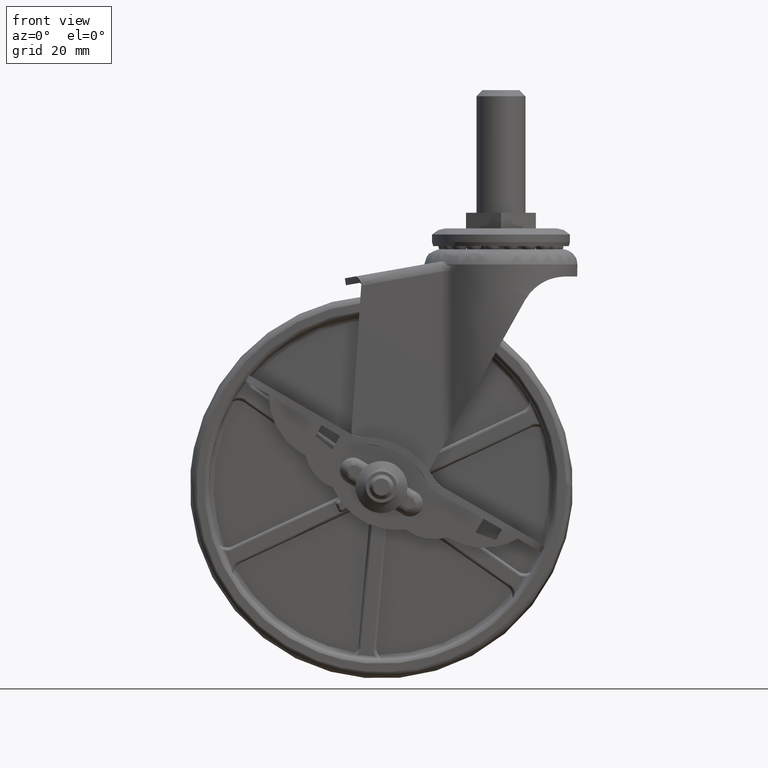
[diagram: clean part render]
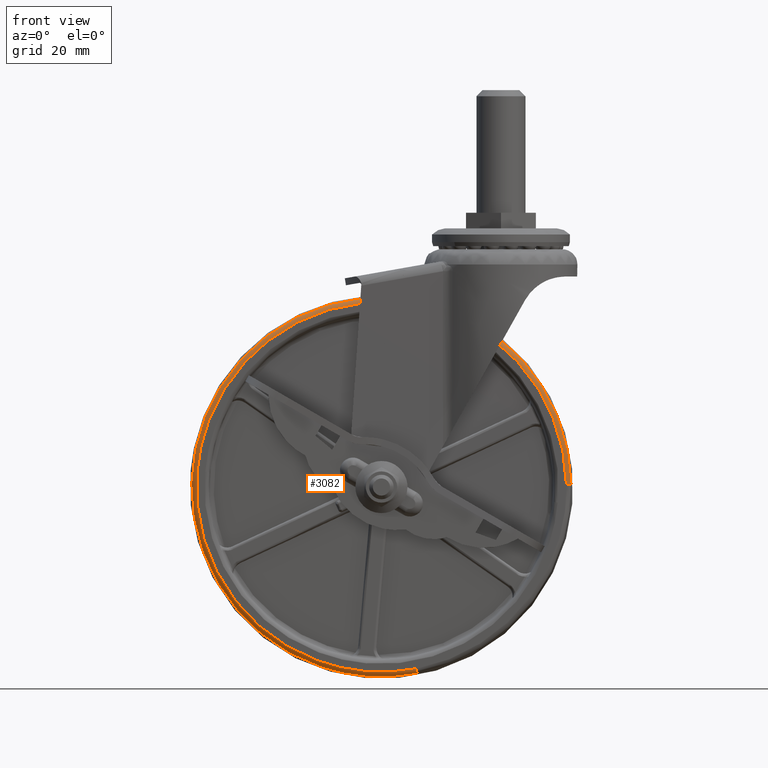
[diagram: same view with one face highlighted and labeled with its STEP entity id]
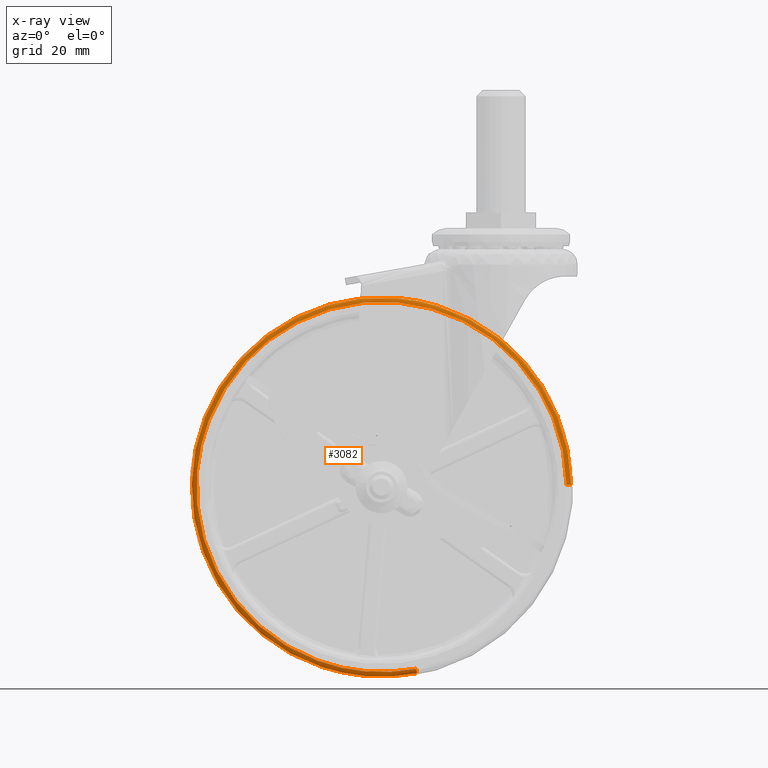
[diagram: x-ray of the same camera — body ghosted, the highlighted face saturated]
A machine part, front view. The second image highlights one B-rep face of the part: STEP entity #3082.
The next image is the same camera in x-ray: the body ghosted, the highlighted face saturated — about 0% of this face is hidden behind the body in this view.
In plain terms, the highlighted face is a freeform B-spline surface patch.
Its self-contained STEP definition (entity closure, byte-faithful):
#2843=CARTESIAN_POINT('',(16.453252292690600,-12.499999999999959,-58.099059679529667));
#2844=VERTEX_POINT('',#2843);
#2845=CARTESIAN_POINT('',(60.078980429893022,-12.499999999999959,6.060227488452332));
#2846=VERTEX_POINT('',#2845);
#2864=CARTESIAN_POINT('',(16.859412540729789,-11.167512254806500,-59.533276336664599));
#2865=VERTEX_POINT('',#2864);
#2866=CARTESIAN_POINT('',(16.859412540729789,-11.167512254806500,-59.533276336664599));
#2867=CARTESIAN_POINT('',(16.853237502718439,-11.371463891503289,-59.511471291961151));
#2868=CARTESIAN_POINT('',(16.819508682495059,-11.747251617374680,-59.392369444820069));
#2869=CARTESIAN_POINT('',(16.717276672305079,-12.188880453102581,-59.031371901093230));
#2870=CARTESIAN_POINT('',(16.589894838023170,-12.444971255589961,-58.581566314668969));
#2871=CARTESIAN_POINT('',(16.496729751554859,-12.500071203979379,-58.252585525599272));
#2872=CARTESIAN_POINT('',(16.453252292690600,-12.499999999999959,-58.099059679529667));
#2873=B_SPLINE_CURVE_WITH_KNOTS('',3,(#2866,#2867,#2868,#2869,#2870,#2871,#2872),.UNSPECIFIED.,.F.,.U.,(4,1,1,1,4),(0.000000233319746,0.615522485880373,1.162648214424192,1.709783569192799,2.188522399944633),.UNSPECIFIED.);
#2874=EDGE_CURVE('',#2865,#2844,#2873,.T.);
#2876=CARTESIAN_POINT('',(61.562073801667132,-11.167497079689721,6.209828615817592));
#2877=VERTEX_POINT('',#2876);
#2894=CARTESIAN_POINT('',(61.562073801667132,-11.167497079689721,6.209828615817592));
#2895=CARTESIAN_POINT('',(61.534781723095492,-11.416853879439451,6.207075636252794));
#2896=CARTESIAN_POINT('',(61.376141907110203,-11.834211039669761,6.191073477659235));
#2897=CARTESIAN_POINT('',(60.997214867841151,-12.207147354371960,6.152850724226451));
#2898=CARTESIAN_POINT('',(60.577767845307122,-12.438205850484691,6.110540679140562));
#2899=CARTESIAN_POINT('',(60.283157122639643,-12.500268644065120,6.080822997797434));
#2900=CARTESIAN_POINT('',(60.078980429893022,-12.499999999999959,6.060227488452332));
#2901=B_SPLINE_CURVE_WITH_KNOTS('',3,(#2894,#2895,#2896,#2897,#2898,#2899,#2900),.UNSPECIFIED.,.F.,.U.,(4,1,1,1,4),(0.000000233330800,0.752312871302167,1.299438212000502,1.573010826571654,2.188537257960483),.UNSPECIFIED.);
#2902=EDGE_CURVE('',#2877,#2846,#2901,.T.);
#2907=CARTESIAN_POINT('',(61.569816046889464,-11.069252319270715,6.210609583864381));
#2908=CARTESIAN_POINT('',(55.359206463025075,-11.069252319270714,67.780425630753854));
#2909=CARTESIAN_POINT('',(-6.210609583864379,-11.069252319270715,61.569816046889464));
#2910=CARTESIAN_POINT('',(-67.780425630753854,-11.069252319270714,55.359206463025075));
#2911=CARTESIAN_POINT('',(-61.569816046889464,-11.069252319270715,-6.210609583864375));
#2912=CARTESIAN_POINT('',(-55.359206463025075,-11.069252319270714,-67.780425630753854));
#2913=CARTESIAN_POINT('',(6.210609583864371,-11.069252319270715,-61.569816046889464));
#2914=CARTESIAN_POINT('',(11.625292589156992,-11.069252319270710,-61.023631498593119));
#2915=CARTESIAN_POINT('',(16.861533098262161,-11.069252319270712,-59.540764363813842));
#2916=CARTESIAN_POINT('',(61.499552790669277,-12.597241096848869,6.203522058182280));
#2917=CARTESIAN_POINT('',(55.296030732486990,-12.597241096848872,67.703074848851529));
#2918=CARTESIAN_POINT('',(-6.203522058182275,-12.597241096848869,61.499552790669277));
#2919=CARTESIAN_POINT('',(-67.703074848851529,-12.597241096848872,55.296030732486990));
#2920=CARTESIAN_POINT('',(-61.499552790669277,-12.597241096848869,-6.203522058182272));
#2921=CARTESIAN_POINT('',(-55.296030732487012,-12.597241096848872,-67.703074848851529));
#2922=CARTESIAN_POINT('',(6.203522058182270,-12.597241096848869,-61.499552790669277));
#2923=CARTESIAN_POINT('',(11.612025846388029,-12.597241096848869,-60.953991546246890));
#2924=CARTESIAN_POINT('',(16.842290776351589,-12.597241096848871,-59.472816654194979));
#2925=CARTESIAN_POINT('',(59.980943166711072,-12.496760101700342,6.050338370293384));
#2926=CARTESIAN_POINT('',(53.930604796417676,-12.496760101700339,66.031281537004418));
#2927=CARTESIAN_POINT('',(-6.050338370293379,-12.496760101700342,59.980943166711072));
#2928=CARTESIAN_POINT('',(-66.031281537004418,-12.496760101700339,53.930604796417676));
#2929=CARTESIAN_POINT('',(-59.980943166711072,-12.496760101700342,-6.050338370293377));
#2930=CARTESIAN_POINT('',(-53.930604796417676,-12.496760101700339,-66.031281537004418));
#2931=CARTESIAN_POINT('',(6.050338370293372,-12.496760101700342,-59.980943166711072));
#2932=CARTESIAN_POINT('',(11.325289871835514,-12.496760101700339,-59.448853476448740));
#2933=CARTESIAN_POINT('',(16.426403770643958,-12.496760101700332,-58.004253264110211));
#2941=(BOUNDED_SURFACE()B_SPLINE_SURFACE(2,2,((#2907,#2916,#2925),(#2908,#2917,#2926),(#2909,#2918,#2927),(#2910,#2919,#2928),(#2911,#2920,#2929),(#2912,#2921,#2930),(#2913,#2922,#2931),(#2914,#2923,#2932),(#2915,#2924,#2933)),.UNSPECIFIED.,.F.,.F.,.U.)B_SPLINE_SURFACE_WITH_KNOTS((3,2,2,2,3),(3,3),(0.0,102.529882995908590,205.059765991817190,307.589648987725810,319.893234947234820),(0.0,2.519712757315813),.UNSPECIFIED.)GEOMETRIC_REPRESENTATION_ITEM()RATIONAL_B_SPLINE_SURFACE(((0.912563850757037,0.638783160504947,0.912113588463525),(0.645280087136010,0.451687904500823,0.644961703614955),(0.912563850757037,0.638783160504947,0.912113588463525),(0.645280087136010,0.451687904500823,0.644961703614955),(0.912563850757037,0.638783160504947,0.912113588463525),(0.645280087136010,0.451687904500823,0.644961703614955),(0.912563850757037,0.638783160504947,0.912113588463525),(0.880489799122514,0.616331729784453,0.880055362281697),(0.856113519880276,0.599268642436876,0.855691110383507)))REPRESENTATION_ITEM('')SURFACE());
#2942=CARTESIAN_POINT('',(0.0,-12.500000000000000,-60.383857476401097));
#2943=VERTEX_POINT('',#2942);
#2944=CARTESIAN_POINT('',(0.0,-12.500000000000000,-60.383857476401097));
#2945=CARTESIAN_POINT('',(2.343370012421323,-12.500000000000011,-60.383899253343969));
#2946=CARTESIAN_POINT('',(7.898020605348040,-12.499999999999980,-60.060142742581768));
#2947=CARTESIAN_POINT('',(13.363523736564700,-12.499999999999989,-58.974288764552647));
#2948=CARTESIAN_POINT('',(16.453252292690600,-12.499999999999959,-58.099059679529667));
#2949=B_SPLINE_CURVE_WITH_KNOTS('',3,(#2944,#2945,#2946,#2947,#2948),.UNSPECIFIED.,.F.,.U.,(4,1,4),(2.593012E-009,7.030116288047264,16.663976620512209),.UNSPECIFIED.);
#2950=EDGE_CURVE('',#2943,#2844,#2949,.T.);
#2951=ORIENTED_EDGE('',*,*,#2950,.F.);
#2952=CARTESIAN_POINT('',(-60.383857476401097,-12.500000000000000,0.0));
#2953=VERTEX_POINT('',#2952);
#2954=CARTESIAN_POINT('',(-60.383857476401097,-12.500000000000000,0.0));
#2955=CARTESIAN_POINT('',(-60.383918899651682,-12.500000000000030,-2.470052808296907));
#2956=CARTESIAN_POINT('',(-60.065200088128677,-12.499999999999950,-7.657194163150003));
#2957=CARTESIAN_POINT('',(-58.754599247382451,-12.500000000000060,-14.464122343811320));
#2958=CARTESIAN_POINT('',(-56.850794825284481,-12.500000000000000,-20.603873777447941));
#2959=CARTESIAN_POINT('',(-54.342978405311058,-12.499999999999950,-26.658677158692939));
#2960=CARTESIAN_POINT('',(-50.397817363514420,-12.500000000000041,-33.673080140496950));
#2961=CARTESIAN_POINT('',(-44.833442493419042,-12.499999999999940,-40.803305743168480));
#2962=CARTESIAN_POINT('',(-37.706683139361473,-12.499999999999940,-47.505696642808147));
#2963=CARTESIAN_POINT('',(-29.887521317329391,-12.500000000000380,-52.765151191388732));
#2964=CARTESIAN_POINT('',(-21.681663294652640,-12.499999999999631,-56.553939265825818));
#2965=CARTESIAN_POINT('',(-14.700734687670320,-12.500000000000229,-58.694905639009932));
#2966=CARTESIAN_POINT('',(-7.533657410850824,-12.499999999999840,-60.052042629864943));
#2967=CARTESIAN_POINT('',(-2.840575424129866,-12.500000000000160,-60.384001957396158));
#2968=CARTESIAN_POINT('',(0.0,-12.500000000000000,-60.383857476401097));
#2969=B_SPLINE_CURVE_WITH_KNOTS('',3,(#2954,#2955,#2956,#2957,#2958,#2959,#2960,#2961,#2962,#2963,#2964,#2965,#2966,#2967,#2968),.UNSPECIFIED.,.F.,.U.,(4,1,1,1,1,1,1,1,1,1,1,1,4),(0.000000066564084,7.410169705882723,15.561449747443490,20.748626206125650,26.676822945963519,35.198606612649392,44.831879887352812,53.724086036308080,64.468945899022515,72.990726533758263,80.771490083632358,86.329175291751241,94.850890314919369),.UNSPECIFIED.);
#2970=EDGE_CURVE('',#2953,#2943,#2969,.T.);
#2971=ORIENTED_EDGE('',*,*,#2970,.F.);
#2972=CARTESIAN_POINT('',(0.0,-12.500000000000000,60.383857476401097));
#2973=VERTEX_POINT('',#2972);
#2974=CARTESIAN_POINT('',(0.0,-12.500000000000000,60.383857476401097));
#2975=CARTESIAN_POINT('',(-3.087584051523655,-12.499999999999920,60.384032145963431));
#2976=CARTESIAN_POINT('',(-8.274669694512898,-12.500000000000179,59.985124611259053));
#2977=CARTESIAN_POINT('',(-15.054469053614531,-12.499999999999829,58.571460161135860));
#2978=CARTESIAN_POINT('',(-21.194274753821709,-12.500000000000091,56.667830975747599));
#2979=CARTESIAN_POINT('',(-26.760637865994550,-12.500000000000080,54.261468840084682));
#2980=CARTESIAN_POINT('',(-32.676328833859650,-12.499999999999600,50.910215524356779));
#2981=CARTESIAN_POINT('',(-38.921491438066397,-12.500000000000270,46.454632617318239));
#2982=CARTESIAN_POINT('',(-44.455077852861173,-12.499999999999909,41.121165575506652));
#2983=CARTESIAN_POINT('',(-49.012223755301072,-12.499999999999980,35.426704254020848));
#2984=CARTESIAN_POINT('',(-52.535756498507318,-12.500000000000030,30.046966031828489));
#2985=CARTESIAN_POINT('',(-56.130777198767852,-12.500000000000000,22.850519012879651));
#2986=CARTESIAN_POINT('',(-58.788152824161060,-12.499999999999980,14.722880225733951));
#2987=CARTESIAN_POINT('',(-60.138874181649093,-12.500000000000060,6.792664468611916));
#2988=CARTESIAN_POINT('',(-60.383881511224047,-12.499999999999950,2.099543257135930));
#2989=CARTESIAN_POINT('',(-60.383857476401097,-12.500000000000000,0.0));
#2990=B_SPLINE_CURVE_WITH_KNOTS('',3,(#2974,#2975,#2976,#2977,#2978,#2979,#2980,#2981,#2982,#2983,#2984,#2985,#2986,#2987,#2988,#2989),.UNSPECIFIED.,.F.,.U.,(4,1,1,1,1,1,1,1,1,1,1,1,1,4),(0.000000066558954,9.262737266304029,15.561449747438971,20.748626206121511,28.529386682062299,33.716529784838890,41.126808656039913,51.501014815045323,56.688220355937617,62.986917638551532,70.767655860336319,80.771490083632230,88.552249462635444,94.850890314919369),.UNSPECIFIED.);
#2991=EDGE_CURVE('',#2973,#2953,#2990,.T.);
#2992=ORIENTED_EDGE('',*,*,#2991,.F.);
#2993=CARTESIAN_POINT('',(60.078980429893022,-12.499999999999959,6.060227488452332));
#2994=CARTESIAN_POINT('',(59.800665623006608,-12.499999999999980,8.820607568248930));
#2995=CARTESIAN_POINT('',(58.901572899462323,-12.499999999999931,14.074421341844680));
#2996=CARTESIAN_POINT('',(56.287306304555067,-12.500000000000080,22.480411184539580));
#2997=CARTESIAN_POINT('',(52.394359013012597,-12.499999999999771,30.521893248947400));
#2998=CARTESIAN_POINT('',(47.290503791854221,-12.500000000000339,37.842505226528878));
#2999=CARTESIAN_POINT('',(42.114421996884623,-12.499999999999419,43.468422494092493));
#3000=CARTESIAN_POINT('',(36.579822986742307,-12.500000000000240,48.218658586257057));
#3001=CARTESIAN_POINT('',(29.849606587197069,-12.499999999999879,52.740376932072962));
#3002=CARTESIAN_POINT('',(21.997215264898649,-12.499999999999980,56.486169511198803));
#3003=CARTESIAN_POINT('',(14.564226880117589,-12.500000000000121,58.727562252337513));
#3004=CARTESIAN_POINT('',(7.398311791611345,-12.499999999999661,60.059545962469947));
#3005=CARTESIAN_POINT('',(2.889989088046691,-12.500000000000620,60.384001999584967));
#3006=CARTESIAN_POINT('',(0.0,-12.500000000000000,60.383857476401097));
#3007=B_SPLINE_CURVE_WITH_KNOTS('',3,(#2993,#2994,#2995,#2996,#2997,#2998,#2999,#3000,#3001,#3002,#3003,#3004,#3005,#3006),.UNSPECIFIED.,.F.,.U.,(4,1,1,1,1,1,1,1,1,1,1,4),(0.000000064051306,8.323115837642789,15.952709799025730,26.356701397670520,35.026673671717170,42.656227991408038,49.245387736163210,56.874949596743150,66.932113186175428,75.255282041717351,80.110465695539631,88.780416089673139),.UNSPECIFIED.);
#3008=EDGE_CURVE('',#2846,#2973,#3007,.T.);
#3009=ORIENTED_EDGE('',*,*,#3008,.F.);
#3010=ORIENTED_EDGE('',*,*,#2902,.F.);
#3011=CARTESIAN_POINT('',(0.0,-11.167484169115880,61.874480111000857));
#3012=VERTEX_POINT('',#3011);
#3013=CARTESIAN_POINT('',(61.562073801667132,-11.167497079689721,6.209828615817592));
#3014=CARTESIAN_POINT('',(61.300618612357717,-11.167496478326941,8.802637607369919));
#3015=CARTESIAN_POINT('',(60.468733384019757,-11.167495310444760,13.838025633481820));
#3016=CARTESIAN_POINT('',(58.351111944056257,-11.167493647486751,21.007961432376369));
#3017=CARTESIAN_POINT('',(55.546617634283699,-11.167492129881580,27.551199062435149));
#3018=CARTESIAN_POINT('',(51.794530391388477,-11.167490599022800,34.151582128535047));
#3019=CARTESIAN_POINT('',(46.665959887515243,-11.167489012161280,40.993421886067949));
#3020=CARTESIAN_POINT('',(40.809732976362028,-11.167487681022420,46.732702084078348));
#3021=CARTESIAN_POINT('',(34.102316564995540,-11.167486500863330,51.821021910414878));
#3022=CARTESIAN_POINT('',(27.216166231640042,-11.167485574673471,55.814341124120247));
#3023=CARTESIAN_POINT('',(20.266796980847481,-11.167484932710559,58.582199570507640));
#3024=CARTESIAN_POINT('',(13.651982043134430,-11.167484498718030,60.453382112311303));
#3025=CARTESIAN_POINT('',(7.344069588394042,-11.167484235456831,61.588447659309843));
#3026=CARTESIAN_POINT('',(2.369054983598654,-11.167484169105080,61.874526162669788));
#3027=CARTESIAN_POINT('',(0.0,-11.167484169115880,61.874480111000857));
#3028=B_SPLINE_CURVE_WITH_KNOTS('',3,(#3013,#3014,#3015,#3016,#3017,#3018,#3019,#3020,#3021,#3022,#3023,#3024,#3025,#3026,#3027),.UNSPECIFIED.,.F.,.U.,(4,1,1,1,1,1,1,1,1,1,1,1,4),(0.000000063625208,7.817875324238727,15.280433800474290,22.387647942606410,29.139490740480099,38.023512796345088,47.973465746375808,53.659253695483009,63.253977730773713,71.782619969704228,76.046956726398847,83.864853657601969,90.972028015516145),.UNSPECIFIED.);
#3029=EDGE_CURVE('',#2877,#3012,#3028,.T.);
#3030=ORIENTED_EDGE('',*,*,#3029,.T.);
#3031=CARTESIAN_POINT('',(-61.460645238487857,-11.167500525878991,7.144238826185015));
#3032=VERTEX_POINT('',#3031);
#3033=CARTESIAN_POINT('',(0.0,-11.167484169115880,61.874480111000857));
#3034=CARTESIAN_POINT('',(-3.399647534304689,-11.167484673695469,61.874742096515703));
#3035=CARTESIAN_POINT('',(-10.081629583952241,-11.167485738522741,61.322362851007043));
#3036=CARTESIAN_POINT('',(-18.639573841838558,-11.167487290875290,59.188213077908813));
#3037=CARTESIAN_POINT('',(-26.721865891634430,-11.167488911233701,56.005411551950132));
#3038=CARTESIAN_POINT('',(-33.922890275444622,-11.167490507331580,52.016516023509922));
#3039=CARTESIAN_POINT('',(-41.385469408050973,-11.167492370548620,46.300416281247863));
#3040=CARTESIAN_POINT('',(-47.439551695390897,-11.167494095460190,40.048983725909039));
#3041=CARTESIAN_POINT('',(-52.816948685184123,-11.167495874079670,32.631305442405903));
#3042=CARTESIAN_POINT('',(-56.765747215992597,-11.167497450218390,25.141250845395199));
#3043=CARTESIAN_POINT('',(-59.887105665344990,-11.167499068556500,16.402737058954170));
#3044=CARTESIAN_POINT('',(-61.068326747746582,-11.167500021292041,10.521181224345170));
#3045=CARTESIAN_POINT('',(-61.460645238487857,-11.167500525878991,7.144238826185015));
#3046=B_SPLINE_CURVE_WITH_KNOTS('',3,(#3033,#3034,#3035,#3036,#3037,#3038,#3039,#3040,#3041,#3042,#3043,#3044,#3045),.UNSPECIFIED.,.F.,.U.,(4,1,1,1,1,1,1,1,1,1,4),(0.000000063487931,10.198909504495090,20.046213376225751,26.376605074284971,36.223905266664502,44.664418834680738,54.511618665902297,62.248766492983570,72.096040730527989,79.833167196419780,90.032116072815697),.UNSPECIFIED.);
#3047=EDGE_CURVE('',#3012,#3032,#3046,.T.);
#3048=ORIENTED_EDGE('',*,*,#3047,.T.);
#3049=CARTESIAN_POINT('',(0.0,-11.167512887776420,-61.874476883661302));
#3050=VERTEX_POINT('',#3049);
#3051=CARTESIAN_POINT('',(-61.460645238487857,-11.167500525878991,7.144238826185015));
#3052=CARTESIAN_POINT('',(-61.837397827743573,-11.167500815941420,3.905068952501670));
#3053=CARTESIAN_POINT('',(-62.046879644918917,-11.167501368783300,-1.815703918729785));
#3054=CARTESIAN_POINT('',(-61.286925470430681,-11.167502180365471,-9.263326387257077));
#3055=CARTESIAN_POINT('',(-59.938210727000730,-11.167502952268769,-15.789455594926361));
#3056=CARTESIAN_POINT('',(-57.970599916486158,-11.167503749663490,-22.019642356906878));
#3057=CARTESIAN_POINT('',(-54.632321404974967,-11.167504791017871,-29.471428217742279));
#3058=CARTESIAN_POINT('',(-50.435039330042507,-11.167505833841931,-36.172983154702031));
#3059=CARTESIAN_POINT('',(-45.122318610925639,-11.167506943455290,-42.549844749244492));
#3060=CARTESIAN_POINT('',(-40.571790678076759,-11.167507778242159,-46.854281965170642));
#3061=CARTESIAN_POINT('',(-35.304311674084147,-11.167508654183040,-50.932253115560243));
#3062=CARTESIAN_POINT('',(-30.009276566693430,-11.167509459248009,-54.276171680337100));
#3063=CARTESIAN_POINT('',(-23.866571586733290,-11.167510298074500,-57.203229990608463));
#3064=CARTESIAN_POINT('',(-17.716969137928139,-11.167511064201671,-59.396381960123541));
#3065=CARTESIAN_POINT('',(-9.918765652968368,-11.167511948921430,-61.308641152163652));
#3066=CARTESIAN_POINT('',(-3.804542743021428,-11.167512549386380,-61.874934833530290));
#3067=CARTESIAN_POINT('',(0.0,-11.167512887776420,-61.874476883661302));
#3068=B_SPLINE_CURVE_WITH_KNOTS('',3,(#3051,#3052,#3053,#3054,#3055,#3056,#3057,#3058,#3059,#3060,#3061,#3062,#3063,#3064,#3065,#3066,#3067),.UNSPECIFIED.,.F.,.U.,(4,1,1,1,1,1,1,1,1,1,1,1,1,1,4),(0.000000039420115,9.783002102424277,17.120323251788321,22.419494378025899,29.756807574465409,36.686497871696787,46.877152379133463,53.399125702721143,61.551726750418887,65.627997060884951,73.372920193509572,80.302592340007735,86.009386973565569,92.939062991523301,104.352599553203400),.UNSPECIFIED.);
#3069=EDGE_CURVE('',#3032,#3050,#3068,.T.);
#3070=ORIENTED_EDGE('',*,*,#3069,.T.);
#3071=CARTESIAN_POINT('',(0.0,-11.167512887776420,-61.874476883661302));
#3072=CARTESIAN_POINT('',(3.201635170217091,-11.167512887836750,-61.874699691053628));
#3073=CARTESIAN_POINT('',(8.893332369577895,-11.167512768045681,-61.431622996907578));
#3074=CARTESIAN_POINT('',(14.463495507291100,-11.167512438266630,-60.211849810956970));
#3075=CARTESIAN_POINT('',(16.859412540729789,-11.167512254806500,-59.533276336664599));
#3076=B_SPLINE_CURVE_WITH_KNOTS('',3,(#3071,#3072,#3073,#3074,#3075),.UNSPECIFIED.,.F.,.U.,(4,1,4),(2.658982E-009,9.604868347890324,17.075338912373219),.UNSPECIFIED.);
#3077=EDGE_CURVE('',#3050,#2865,#3076,.T.);
#3078=ORIENTED_EDGE('',*,*,#3077,.T.);
#3079=ORIENTED_EDGE('',*,*,#2874,.T.);
#3080=EDGE_LOOP('',(#2951,#2971,#2992,#3009,#3010,#3030,#3048,#3070,#3078,#3079));
#3081=FACE_OUTER_BOUND('',#3080,.T.);
#3082=ADVANCED_FACE('',(#3081),#2941,.T.);